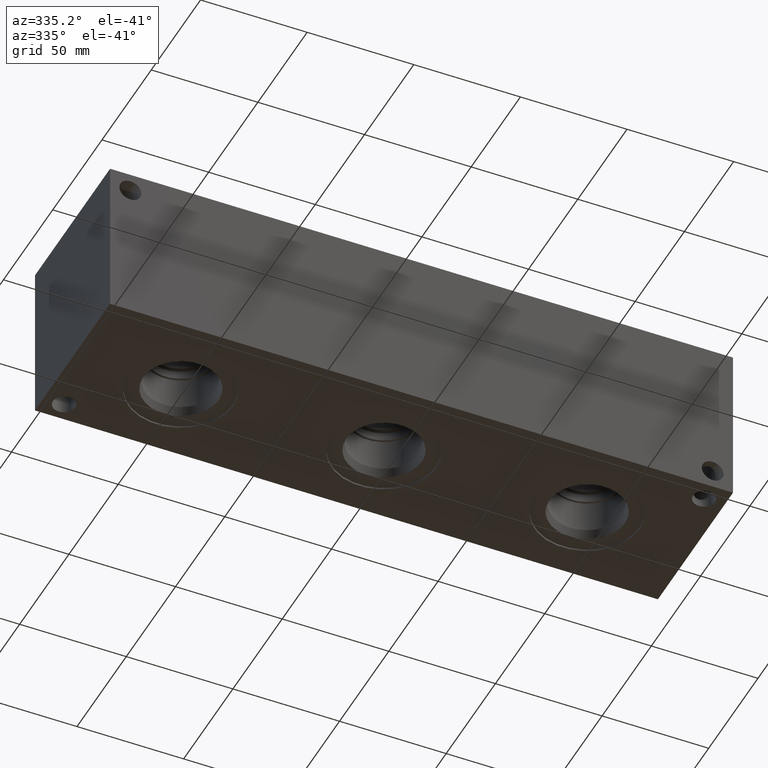
[diagram: clean part render]
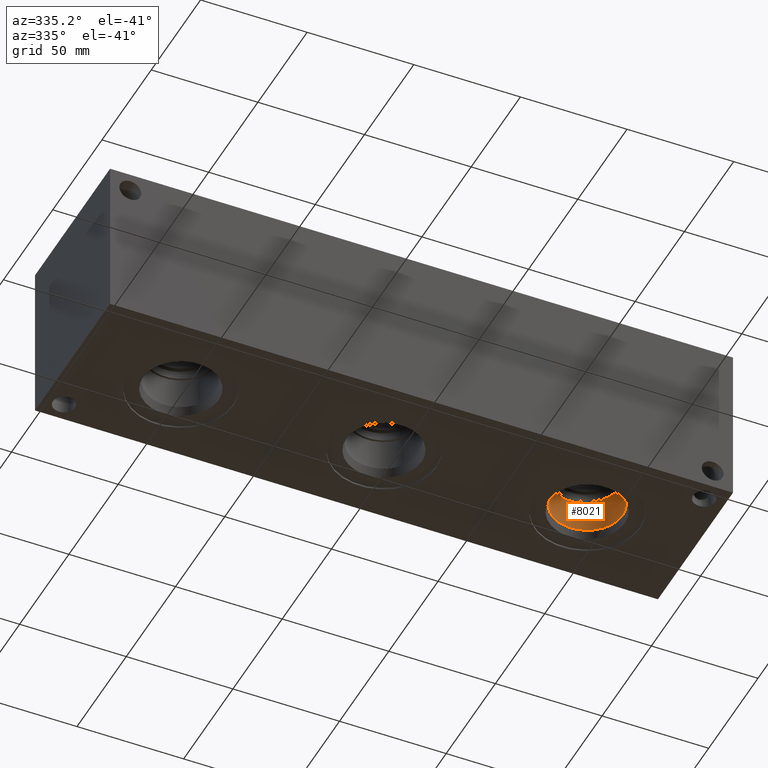
[diagram: same view with one face highlighted and labeled with its STEP entity id]
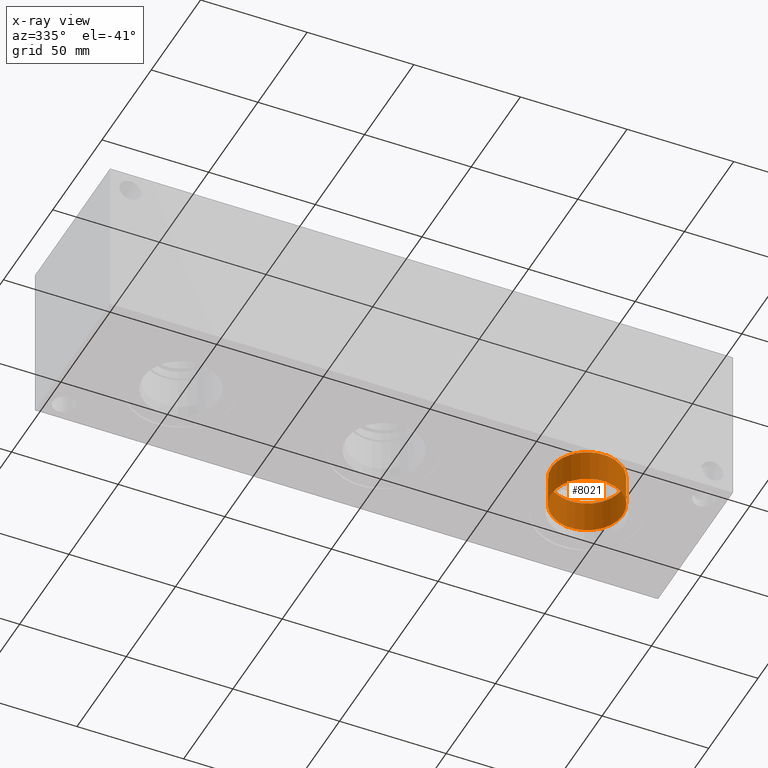
[diagram: x-ray of the same camera — body ghosted, the highlighted face saturated]
A machine part, auxiliary view. The second image highlights one B-rep face of the part: STEP entity #8021.
The next image is the same camera in x-ray: the body ghosted, the highlighted face saturated — about 0% of this face is hidden behind the body in this view.
In plain terms, the highlighted cylindrical surface (bore or boss wall) has radius 16.6751 mm, axis along (0, 0, -1).
Its self-contained STEP definition (entity closure, byte-faithful):
#29=CYLINDRICAL_SURFACE('',#8380,16.6751);
#135=CIRCLE('',#8377,16.6751);
#136=CIRCLE('',#8378,16.6751);
#138=CIRCLE('',#8381,16.6751);
#966=FACE_OUTER_BOUND('',#1419,.T.);
#1419=EDGE_LOOP('',(#6750,#6751,#6752,#6753,#6754));
#2197=LINE('',#13606,#2950);
#2950=VECTOR('',#9786,16.6751);
#3654=VERTEX_POINT('',#13597);
#3655=VERTEX_POINT('',#13598);
#3657=VERTEX_POINT('',#13604);
#4706=EDGE_CURVE('',#3654,#3655,#135,.T.);
#4707=EDGE_CURVE('',#3655,#3654,#136,.T.);
#4709=EDGE_CURVE('',#3657,#3657,#138,.T.);
#4710=EDGE_CURVE('',#3657,#3655,#2197,.T.);
#6750=ORIENTED_EDGE('',*,*,#4709,.F.);
#6751=ORIENTED_EDGE('',*,*,#4710,.T.);
#6752=ORIENTED_EDGE('',*,*,#4706,.F.);
#6753=ORIENTED_EDGE('',*,*,#4707,.F.);
#6754=ORIENTED_EDGE('',*,*,#4710,.F.);
#8021=ADVANCED_FACE('',(#966),#29,.F.);
#8377=AXIS2_PLACEMENT_3D('',#13599,#9776,#9777);
#8378=AXIS2_PLACEMENT_3D('',#13600,#9778,#9779);
#8380=AXIS2_PLACEMENT_3D('',#13603,#9782,#9783);
#8381=AXIS2_PLACEMENT_3D('',#13605,#9784,#9785);
#9776=DIRECTION('center_axis',(0.,0.,-1.));
#9777=DIRECTION('ref_axis',(1.,0.,0.));
#9778=DIRECTION('center_axis',(0.,0.,-1.));
#9779=DIRECTION('ref_axis',(1.,0.,0.));
#9782=DIRECTION('center_axis',(0.,0.,-1.));
#9783=DIRECTION('ref_axis',(1.,0.,0.));
#9784=DIRECTION('center_axis',(0.,0.,1.));
#9785=DIRECTION('ref_axis',(1.,0.,0.));
#9786=DIRECTION('',(0.,0.,1.));
#13597=CARTESIAN_POINT('',(257.9751,38.1,19.8374));
#13598=CARTESIAN_POINT('',(224.6249,38.1,19.8374));
#13599=CARTESIAN_POINT('Origin',(241.3,38.1,19.8374));
#13600=CARTESIAN_POINT('Origin',(241.3,38.1,19.8374));
#13603=CARTESIAN_POINT('Origin',(241.3,38.1,9.9187));
#13604=CARTESIAN_POINT('',(224.6249,38.1,4.8236788467706));
#13605=CARTESIAN_POINT('Origin',(241.3,38.1,4.8236788467706));
#13606=CARTESIAN_POINT('',(224.6249,38.1,9.9187));